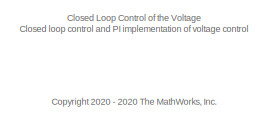
[diagram: root canvas - part 1/3, top left region]
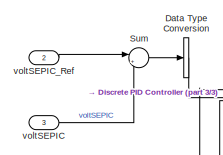
[diagram: root canvas - part 2/3, middle left region]
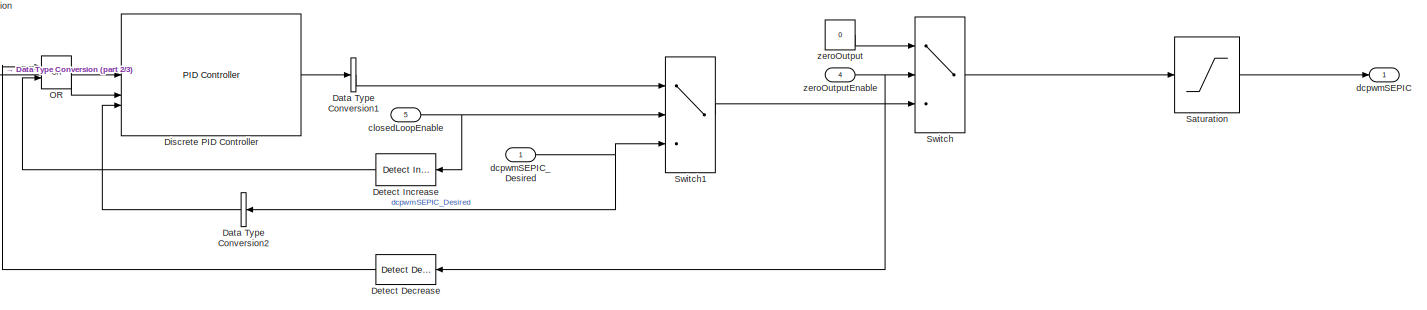
[diagram: root canvas - part 3/3, full width, bottom band]
MODEL slx_8aa24c9b84d5
KIND model
CONFIG AbsTol = auto
CONFIG EnableMultiTasking = off
CONFIG FixedStep = ts500us
CONFIG MaxStep = auto
CONFIG MinStep = auto
CONFIG RelTol = 1e-3
CONFIG SampleTimeConstraint = Unconstrained
CONFIG SolverName = odeN
CONFIG StartTime = 0.0
CONFIG StopTime = 0.1
WORKSPACE source: mxarray member
WORKSPACE TsModel = 0.001
BLOCK [DataTypeConversion] Data Type Conversion
  OutDataTypeStr = double
  RndMeth = Floor
  SaturateOnIntegerOverflow = off
BLOCK [DataTypeConversion] Data Type Conversion1
  OutDataTypeStr = single
  RndMeth = Floor
  SaturateOnIntegerOverflow = off
BLOCK [DataTypeConversion] Data Type Conversion2
  NameLocation = top
  OutDataTypeStr = double
  RndMeth = Floor
  SaturateOnIntegerOverflow = off
BLOCK [Reference] Detect Decrease  REF=simulink/Logic and Bit
Operations/Detect
Decrease
  NameLocation = top
  SourceBlock = simulink/Logic and Bit\nOperations/Detect\nDecrease
  SourceType = Detect Decrease
BLOCK [Reference] Detect Increase  REF=simulink/Logic and Bit
Operations/Detect
Increase
  NameLocation = top
  SourceBlock = simulink/Logic and Bit\nOperations/Detect\nIncrease
  SourceType = Detect Increase
BLOCK [Reference] Discrete PID Controller  REF=slpidlib/PID Controller
  SourceBlock = slpidlib/PID Controller
  SourceType = PID 1dof
BLOCK [Logic] OR
  AllPortsSameDT = off
  Operator = OR
  OutDataTypeStr = boolean
BLOCK [Saturate] Saturation
  AttributesFormatString = %<UpperLimit>\n%<LowerLimit>
  LowerLimit = 0
  UpperLimit = dcpwmSEPICMax
BLOCK [Sum] Sum
  Inputs = |+-
BLOCK [Switch] Switch
  Criteria = u2 > Threshold
  InputSameDT = off
  SaturateOnIntegerOverflow = off
BLOCK [Switch] Switch1
  Criteria = u2 > Threshold
  InputSameDT = off
  SaturateOnIntegerOverflow = off
BLOCK [Inport] closedLoopEnable
  OutDataTypeStr = boolean
  Port = 5
  PortDimensions = 1
  SampleTime = TsModel
  SamplingMode = Sample based
  SignalType = real
  Unit = 1
BLOCK [Outport] dcpwmSEPIC
  OutDataTypeStr = single
  PortDimensions = 1
  SampleTime = TsModel
  SamplingMode = Sample based
  SignalType = real
  VectorParamsAs1DForOutWhenUnconnected = off
BLOCK [Inport] dcpwmSEPIC_Desired
  OutDataTypeStr = single
  PortDimensions = 1
  SampleTime = TsModel
  SamplingMode = Sample based
  SignalType = real
  Unit = 1
BLOCK [Inport] voltSEPIC
  OutDataTypeStr = single
  Port = 3
  PortDimensions = 1
  SampleTime = TsModel
  SamplingMode = Sample based
  SignalType = real
  Unit = V
BLOCK [Inport] voltSEPIC_Ref
  OutDataTypeStr = single
  Port = 2
  PortDimensions = 1
  SampleTime = TsModel
  SamplingMode = Sample based
  SignalType = real
  Unit = V
BLOCK [Constant] zeroOutput
  OutDataTypeStr = single
  Value = 0
BLOCK [Inport] zeroOutputEnable
  OutDataTypeStr = boolean
  Port = 4
  PortDimensions = 1
  SampleTime = TsModel
  SamplingMode = Sample based
  SignalType = real
  Unit = 1
ANNOTATION (root): <copyright redacted>
ANNOTATION (root): Closed Loop Control of the Voltage Closed loop control and PI implementation of voltage control
LINE Data Type Conversion1:1 -> Switch1:1
LINE Data Type Conversion2:1 -> Discrete PID Controller:3
LINE Data Type Conversion:1 -> Discrete PID Controller:1
LINE Detect Decrease:1 -> OR:1
LINE Detect Increase:1 -> OR:2
LINE Discrete PID Controller:1 -> Data Type Conversion1:1
LINE OR:1 -> Discrete PID Controller:2
LINE Saturation:1 -> dcpwmSEPIC:1
LINE Sum:1 -> Data Type Conversion:1
LINE Switch1:1 -> Switch:3
LINE Switch:1 -> Saturation:1
NET closedLoopEnable:1 -> Detect Increase:1, Switch1:2
NET dcpwmSEPIC_Desired:1 -> Data Type Conversion2:1, Switch1:3
LINE voltSEPIC:1 -> Sum:2
LINE voltSEPIC_Ref:1 -> Sum:1
LINE zeroOutput:1 -> Switch:1
NET zeroOutputEnable:1 -> Detect Decrease:1, Switch:2
note: NET lines group one-source signal fan-out (src -> all destinations, sorted); 1:1 wires keep LINE
